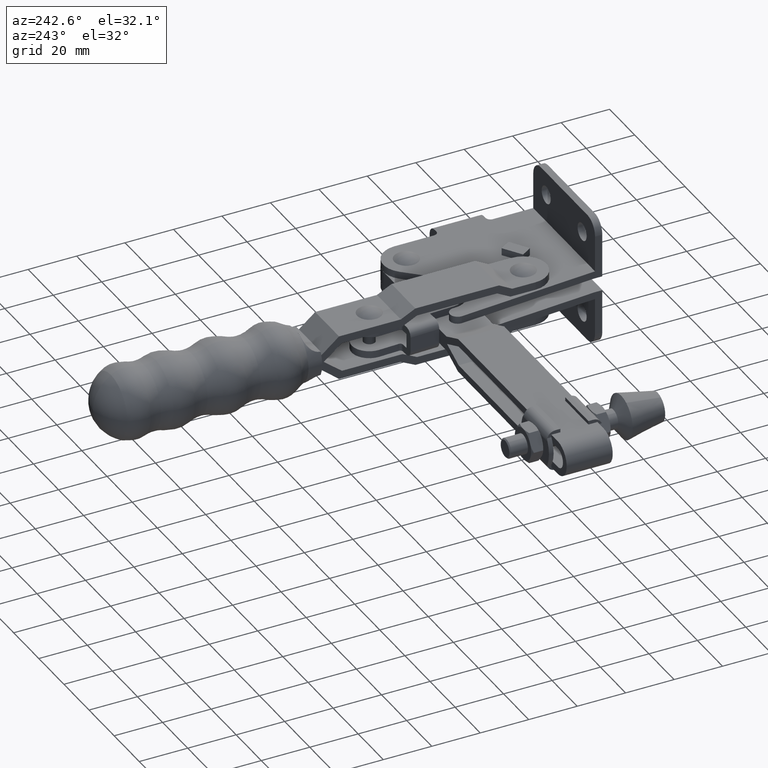
[diagram: clean part render]
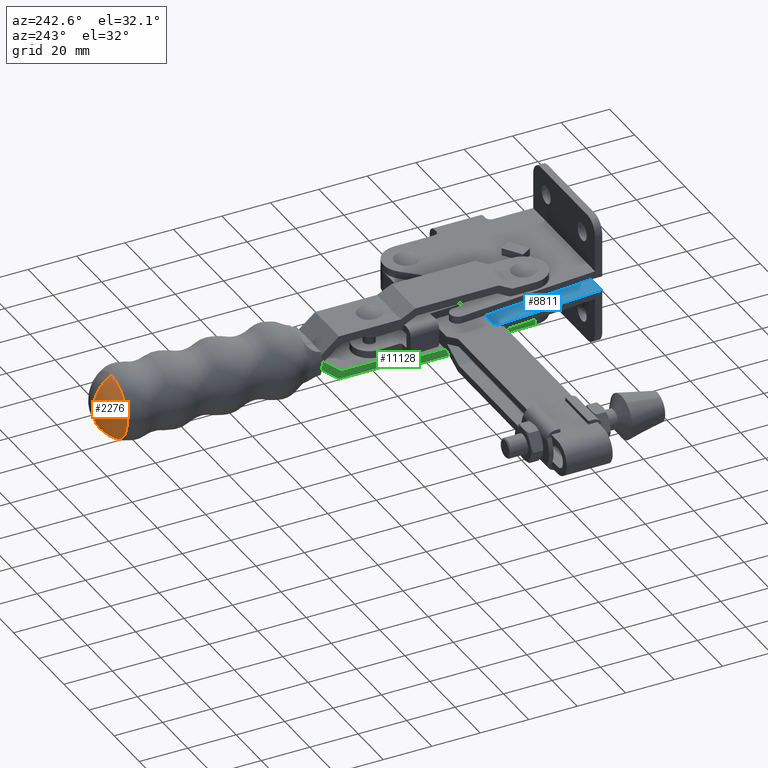
[diagram: same view with three faces highlighted in distinct colors, each labeled with its STEP entity id]
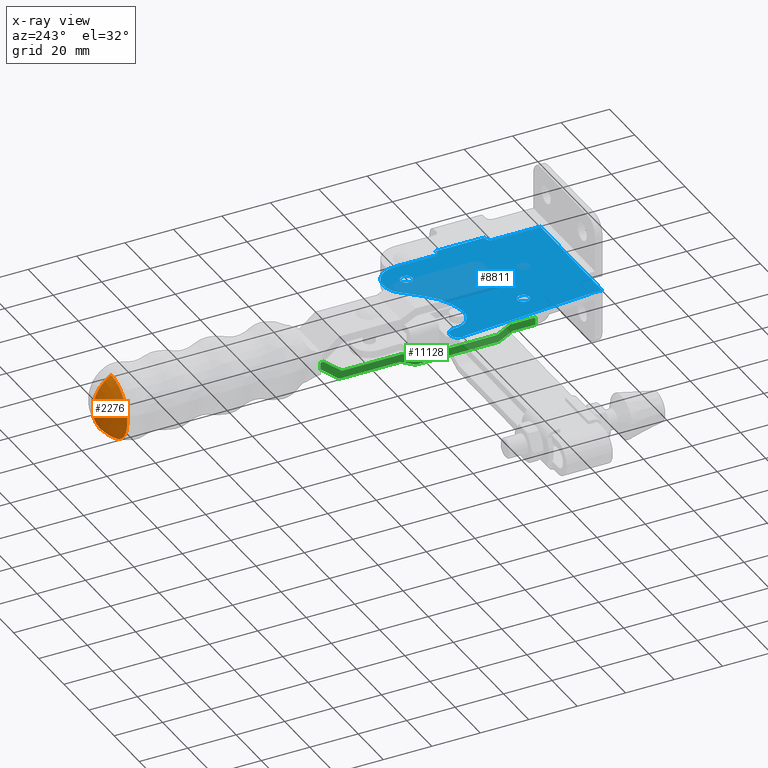
[diagram: x-ray of the same camera — body ghosted, the three highlighted faces saturated]
A machine part, auxiliary view with three faces highlighted in distinct colors.
The next image is the same camera in x-ray (body ghosted, the three faces saturated) — at least one of them is partly hidden behind the body in this view.
Their STEP definitions:

[orange] entity #2276 — the highlighted toroidal blend (fillet) surface has major radius 0.0116 mm and minor (blend) radius 15.0361 mm.
#113 = EDGE_CURVE ( 'NONE', #2653, #11544, #10035, .T. ) ;
#238 = CARTESIAN_POINT ( 'NONE',  ( -40.88923383545749600, 191.3238571931479200, -0.01160999269274295600 ) ) ;
#879 = ORIENTED_EDGE ( 'NONE', *, *, #3340, .F. ) ;
#1187 = DIRECTION ( 'NONE',  ( 5.301320001231254800E-005, 0.9999999985948002700, 0.0000000000000000000 ) ) ;
#1255 = CIRCLE ( 'NONE', #7241, 15.03614265763732800 ) ;
#1437 = FACE_OUTER_BOUND ( 'NONE', #8372, .T. ) ;
#2276 = ADVANCED_FACE ( 'NONE', ( #1437 ), #5219, .T. ) ;
#2653 = VERTEX_POINT ( 'NONE', #3891 ) ;
#3009 = EDGE_CURVE ( 'NONE', #5487, #11544, #1255, .T. ) ;
#3288 = DIRECTION ( 'NONE',  ( -5.301320001245035700E-005, -0.9999999985948002700, -3.551894706177346300E-019 ) ) ;
#3298 = CIRCLE ( 'NONE', #9548, 15.03614265763732800 ) ;
#3340 = EDGE_CURVE ( 'NONE', #5487, #2653, #3298, .T. ) ;
#3891 = CARTESIAN_POINT ( 'NONE',  ( -40.88883527839029600, 198.8419294195952300, 13.01007099940250600 ) ) ;
#4236 = ORIENTED_EDGE ( 'NONE', *, *, #113, .F. ) ;
#4407 = CARTESIAN_POINT ( 'NONE',  ( -40.88923383545749600, 191.3238571931479200, 0.01160999269338183900 ) ) ;
#5219 = TOROIDAL_SURFACE ( 'NONE', #12020, -0.01160999269306239900, 15.03614265763732400 ) ;
#5349 = DIRECTION ( 'NONE',  ( -5.301320001231254800E-005, -0.9999999985948002700, 0.0000000000000000000 ) ) ;
#5487 = VERTEX_POINT ( 'NONE', #11220 ) ;
#5550 = DIRECTION ( 'NONE',  ( -5.301320001245037100E-005, -0.9999999985948004900, -3.551894706177347300E-019 ) ) ;
#6571 = AXIS2_PLACEMENT_3D ( 'NONE', #11246, #5550, #12191 ) ;
#6783 = DIRECTION ( 'NONE',  ( 0.9999999985948003800, -5.301320001245036400E-005, -1.908191406062422600E-016 ) ) ;
#7241 = AXIS2_PLACEMENT_3D ( 'NONE', #4407, #11037, #5349 ) ;
#7927 = ORIENTED_EDGE ( 'NONE', *, *, #3009, .T. ) ;
#8006 = CARTESIAN_POINT ( 'NONE',  ( -40.88923383545749600, 191.3238571931479200, 3.194416534353424200E-013 ) ) ;
#8372 = EDGE_LOOP ( 'NONE', ( #879, #7927, #4236 ) ) ;
#9166 = DIRECTION ( 'NONE',  ( 1.882973044817432600E-023, 3.551894701186225200E-019, -1.000000000000000000 ) ) ;
#9222 = CARTESIAN_POINT ( 'NONE',  ( -40.88883527839029600, 198.8419294195952300, -13.01007099940186700 ) ) ;
#9548 = AXIS2_PLACEMENT_3D ( 'NONE', #238, #6783, #1187 ) ;
#10035 = CIRCLE ( 'NONE', #6571, 13.01007099940219200 ) ;
#11037 = DIRECTION ( 'NONE',  ( -0.9999999985948003800, 5.301320001245036400E-005, 6.835446069150691700E-017 ) ) ;
#11220 = CARTESIAN_POINT ( 'NONE',  ( -40.88843672165699400, 206.3599953473915300, 3.194469941133010700E-013 ) ) ;
#11246 = CARTESIAN_POINT ( 'NONE',  ( -40.88883527839028900, 198.8419294195952300, 3.194443237754403600E-013 ) ) ;
#11544 = VERTEX_POINT ( 'NONE', #9222 ) ;
#12020 = AXIS2_PLACEMENT_3D ( 'NONE', #8006, #3288, #9166 ) ;
#12191 = DIRECTION ( 'NONE',  ( 0.0000000000000000000, 0.0000000000000000000, -1.000000000000000000 ) ) ;

[blue] entity #8811 — the highlighted planar face has unit normal (0, 0, 1).
#6 = ORIENTED_EDGE ( 'NONE', *, *, #2367, .T. ) ;
#91 = VERTEX_POINT ( 'NONE', #8323 ) ;
#92 = DIRECTION ( 'NONE',  ( 1.000000000000000000, 0.0000000000000000000, -1.807003620809174400E-016 ) ) ;
#95 = LINE ( 'NONE', #6975, #9800 ) ;
#223 = AXIS2_PLACEMENT_3D ( 'NONE', #11693, #350, #4113 ) ;
#256 = VERTEX_POINT ( 'NONE', #1129 ) ;
#305 = VERTEX_POINT ( 'NONE', #7770 ) ;
#330 = VECTOR ( 'NONE', #7792, 1000.000000000000000 ) ;
#349 = CARTESIAN_POINT ( 'NONE',  ( -49.19933982822009000, 0.3599999999999999900, -3.000000000000032400 ) ) ;
#350 = DIRECTION ( 'NONE',  ( -2.252670923979116300E-016, 0.0000000000000000000, -1.000000000000000000 ) ) ;
#502 = DIRECTION ( 'NONE',  ( 1.000000000000000000, 0.0000000000000000000, -1.807003620809174400E-016 ) ) ;
#509 = VERTEX_POINT ( 'NONE', #2235 ) ;
#592 = EDGE_CURVE ( 'NONE', #2398, #5914, #7503, .T. ) ;
#699 = DIRECTION ( 'NONE',  ( 1.000000000000000000, 0.0000000000000000000, -1.807003620809174400E-016 ) ) ;
#713 = FACE_OUTER_BOUND ( 'NONE', #6934, .T. ) ;
#817 = EDGE_CURVE ( 'NONE', #9693, #5161, #8233, .T. ) ;
#1010 = VERTEX_POINT ( 'NONE', #9807 ) ;
#1029 = CARTESIAN_POINT ( 'NONE',  ( -51.00783876457293100, 61.01685820576258100, -3.000000000000032000 ) ) ;
#1083 = CIRCLE ( 'NONE', #8744, 3.200000000000049900 ) ;
#1129 = CARTESIAN_POINT ( 'NONE',  ( 0.0006601717799226061900, 3.000000000000000000, -3.000000000000043500 ) ) ;
#1167 = CARTESIAN_POINT ( 'NONE',  ( -6.610988856619023600E-016, 3.000000000000000000, -3.000000000000043500 ) ) ;
#1210 = DIRECTION ( 'NONE',  ( -1.000000000000000000, 0.0000000000000000000, 2.203662952206309300E-016 ) ) ;
#1270 = EDGE_CURVE ( 'NONE', #6355, #91, #2492, .T. ) ;
#1276 = CIRCLE ( 'NONE', #6055, 2.399999999999999500 ) ;
#1458 = EDGE_CURVE ( 'NONE', #6442, #7013, #11491, .T. ) ;
#1488 = CARTESIAN_POINT ( 'NONE',  ( -22.82834167342754500, 60.27915286033955100, -3.000000000000038200 ) ) ;
#1507 = CARTESIAN_POINT ( 'NONE',  ( -6.610988856619023600E-016, 3.000000000000000000, -3.000000000000043500 ) ) ;
#1533 = VECTOR ( 'NONE', #8016, 1000.000000000000000 ) ;
#1671 = CARTESIAN_POINT ( 'NONE',  ( -43.29785875746165400, 28.62999999999998800, -3.000000000000033300 ) ) ;
#1887 = CARTESIAN_POINT ( 'NONE',  ( -47.81334074022173300, 60.66116849802688200, -3.000000000000033800 ) ) ;
#1981 = DIRECTION ( 'NONE',  ( 1.000000000000000000, 0.0000000000000000000, -2.710505431213718700E-016 ) ) ;
#2035 = AXIS2_PLACEMENT_3D ( 'NONE', #1029, #7579, #1981 ) ;
#2039 = VERTEX_POINT ( 'NONE', #1887 ) ;
#2096 = VERTEX_POINT ( 'NONE', #4433 ) ;
#2179 = CIRCLE ( 'NONE', #2035, 3.200000000000049900 ) ;
#2201 = VECTOR ( 'NONE', #8732, 1000.000000000000000 ) ;
#2205 = ORIENTED_EDGE ( 'NONE', *, *, #10216, .F. ) ;
#2213 = ORIENTED_EDGE ( 'NONE', *, *, #7420, .T. ) ;
#2235 = CARTESIAN_POINT ( 'NONE',  ( -47.80936974910127900, 60.91788367839262700, -3.000000000000032900 ) ) ;
#2236 = CARTESIAN_POINT ( 'NONE',  ( 0.0006601717799226061900, 3.000000000000000000, -3.000000000000043500 ) ) ;
#2353 = ORIENTED_EDGE ( 'NONE', *, *, #9524, .T. ) ;
#2367 = EDGE_CURVE ( 'NONE', #11650, #6355, #11002, .T. ) ;
#2398 = VERTEX_POINT ( 'NONE', #6035 ) ;
#2400 = CARTESIAN_POINT ( 'NONE',  ( 1.999999999999999600, 21.99999999999996400, -3.000000000000044400 ) ) ;
#2410 = EDGE_CURVE ( 'NONE', #8741, #7229, #1276, .T. ) ;
#2446 = ORIENTED_EDGE ( 'NONE', *, *, #6780, .F. ) ;
#2455 = DIRECTION ( 'NONE',  ( -2.252670923979116300E-016, 0.0000000000000000000, -1.000000000000000000 ) ) ;
#2471 = ORIENTED_EDGE ( 'NONE', *, *, #7669, .T. ) ;
#2477 = LINE ( 'NONE', #2863, #5236 ) ;
#2492 = LINE ( 'NONE', #5942, #6580 ) ;
#2547 = DIRECTION ( 'NONE',  ( -2.252670923979116300E-016, 0.0000000000000000000, -1.000000000000000000 ) ) ;
#2719 = CIRCLE ( 'NONE', #11956, 2.000000000000001800 ) ;
#2745 = CIRCLE ( 'NONE', #9181, 2.399999999999999500 ) ;
#2805 = CARTESIAN_POINT ( 'NONE',  ( -54.20783876457298300, 61.01685820576258100, -3.000000000000031100 ) ) ;
#2855 = EDGE_CURVE ( 'NONE', #7013, #305, #2719, .T. ) ;
#2863 = CARTESIAN_POINT ( 'NONE',  ( 0.0000000000000000000, 0.0000000000000000000, -3.000000000000044400 ) ) ;
#3013 = VECTOR ( 'NONE', #1210, 1000.000000000000000 ) ;
#3074 = ORIENTED_EDGE ( 'NONE', *, *, #1270, .T. ) ;
#3133 = ORIENTED_EDGE ( 'NONE', *, *, #12207, .T. ) ;
#3200 = FACE_BOUND ( 'NONE', #5223, .T. ) ;
#3226 = AXIS2_PLACEMENT_3D ( 'NONE', #10504, #4832, #11477 ) ;
#3248 = DIRECTION ( 'NONE',  ( 2.252670923979116300E-016, -0.0000000000000000000, 1.000000000000000000 ) ) ;
#3254 = DIRECTION ( 'NONE',  ( -2.252670923979116300E-016, 0.0000000000000000000, -1.000000000000000000 ) ) ;
#3342 = AXIS2_PLACEMENT_3D ( 'NONE', #9300, #3663, #10249 ) ;
#3463 = LINE ( 'NONE', #1507, #11302 ) ;
#3663 = DIRECTION ( 'NONE',  ( 2.252670923979116300E-016, -0.0000000000000000000, 1.000000000000000000 ) ) ;
#3743 = ORIENTED_EDGE ( 'NONE', *, *, #6819, .T. ) ;
#3930 = EDGE_CURVE ( 'NONE', #91, #10739, #7175, .T. ) ;
#3965 = AXIS2_PLACEMENT_3D ( 'NONE', #11143, #5460, #12102 ) ;
#3981 = VECTOR ( 'NONE', #5818, 1000.000000000000100 ) ;
#4113 = DIRECTION ( 'NONE',  ( 1.000000000000000000, 0.0000000000000000000, -2.168404344971006900E-016 ) ) ;
#4116 = EDGE_CURVE ( 'NONE', #9863, #5161, #12086, .T. ) ;
#4309 = CARTESIAN_POINT ( 'NONE',  ( -51.00783876457293100, 61.01685820576258100, -3.000000000000032000 ) ) ;
#4320 = ORIENTED_EDGE ( 'NONE', *, *, #4116, .F. ) ;
#4349 = VERTEX_POINT ( 'NONE', #6555 ) ;
#4432 = CARTESIAN_POINT ( 'NONE',  ( 2.780660171779914000, 42.35999999999990000, -3.000000000000044400 ) ) ;
#4433 = CARTESIAN_POINT ( 'NONE',  ( -16.48307524939460200, 67.12032191307085300, -3.000000000000039100 ) ) ;
#4600 = CARTESIAN_POINT ( 'NONE',  ( -0.01785875746183537800, 60.65999999999998900, -3.000000000000043100 ) ) ;
#4777 = AXIS2_PLACEMENT_3D ( 'NONE', #8895, #3248, #9843 ) ;
#4832 = DIRECTION ( 'NONE',  ( -2.252670923979116300E-016, 0.0000000000000000000, -1.000000000000000000 ) ) ;
#4869 = ORIENTED_EDGE ( 'NONE', *, *, #8860, .T. ) ;
#5091 = CIRCLE ( 'NONE', #3342, 9.499999999999859700 ) ;
#5106 = EDGE_CURVE ( 'NONE', #256, #5644, #8021, .T. ) ;
#5108 = CARTESIAN_POINT ( 'NONE',  ( 1.982141242538149100, 44.35999999999990000, -3.000000000000044400 ) ) ;
#5129 = DIRECTION ( 'NONE',  ( -0.0000000000000000000, -1.000000000000000000, -0.0000000000000000000 ) ) ;
#5156 = CIRCLE ( 'NONE', #12189, 2.399999999999999500 ) ;
#5161 = VERTEX_POINT ( 'NONE', #349 ) ;
#5209 = VERTEX_POINT ( 'NONE', #8854 ) ;
#5223 = EDGE_LOOP ( 'NONE', ( #11091, #8831 ) ) ;
#5236 = VECTOR ( 'NONE', #9446, 1000.000000000000000 ) ;
#5251 = DIRECTION ( 'NONE',  ( 1.000000000000000000, 0.0000000000000000000, -2.710505431213718700E-016 ) ) ;
#5324 = EDGE_CURVE ( 'NONE', #10739, #9693, #3463, .T. ) ;
#5342 = CARTESIAN_POINT ( 'NONE',  ( 0.0006601717799226061900, 0.3599999999999999900, -3.000000000000043500 ) ) ;
#5416 = ORIENTED_EDGE ( 'NONE', *, *, #5106, .T. ) ;
#5460 = DIRECTION ( 'NONE',  ( 2.252670923979116300E-016, -0.0000000000000000000, 1.000000000000000000 ) ) ;
#5474 = CARTESIAN_POINT ( 'NONE',  ( -38.49785875746165700, 28.62999999999998800, -3.000000000000034200 ) ) ;
#5532 = ORIENTED_EDGE ( 'NONE', *, *, #817, .T. ) ;
#5644 = VERTEX_POINT ( 'NONE', #9450 ) ;
#5659 = CARTESIAN_POINT ( 'NONE',  ( -11.91785875746169400, 60.65999999999998900, -2.999999999985902400 ) ) ;
#5697 = DIRECTION ( 'NONE',  ( 2.252670923979116300E-016, -0.0000000000000000000, 1.000000000000000000 ) ) ;
#5769 = CIRCLE ( 'NONE', #5896, 8.300000000000009600 ) ;
#5818 = DIRECTION ( 'NONE',  ( -0.6800338855864164200, -0.7331806833613666600, 1.531892561381061400E-016 ) ) ;
#5896 = AXIS2_PLACEMENT_3D ( 'NONE', #8897, #3254, #9849 ) ;
#5914 = VERTEX_POINT ( 'NONE', #12121 ) ;
#5931 = CIRCLE ( 'NONE', #8508, 2.399999999999999500 ) ;
#5942 = CARTESIAN_POINT ( 'NONE',  ( -49.19334074022156500, 3.561168498026997300, -3.000000000000032000 ) ) ;
#5995 = AXIS2_PLACEMENT_3D ( 'NONE', #8171, #2547, #9124 ) ;
#6028 = ORIENTED_EDGE ( 'NONE', *, *, #5324, .T. ) ;
#6035 = CARTESIAN_POINT ( 'NONE',  ( 0.0000000000000000000, 19.99999999999996100, -3.000000000000044000 ) ) ;
#6055 = AXIS2_PLACEMENT_3D ( 'NONE', #11816, #6119, #502 ) ;
#6062 = LINE ( 'NONE', #2236, #8277 ) ;
#6070 = DIRECTION ( 'NONE',  ( 1.000000000000000000, 0.0000000000000000000, -2.168404344971006900E-016 ) ) ;
#6119 = DIRECTION ( 'NONE',  ( 2.252670923979116300E-016, -0.0000000000000000000, 1.000000000000000000 ) ) ;
#6138 = DIRECTION ( 'NONE',  ( 0.0000000000000000000, -1.000000000000000000, 0.0000000000000000000 ) ) ;
#6218 = CARTESIAN_POINT ( 'NONE',  ( -54.19566179846650300, 60.73795982897007700, -3.000000000000030600 ) ) ;
#6250 = CARTESIAN_POINT ( 'NONE',  ( -7.117858757461695200, 60.65999999999998900, -2.999999999985903300 ) ) ;
#6304 = ORIENTED_EDGE ( 'NONE', *, *, #3930, .T. ) ;
#6321 = DIRECTION ( 'NONE',  ( -2.252670923979116300E-016, 0.0000000000000000000, -1.000000000000000000 ) ) ;
#6330 = EDGE_CURVE ( 'NONE', #9959, #10288, #5931, .T. ) ;
#6355 = VERTEX_POINT ( 'NONE', #6218 ) ;
#6369 = PLANE ( 'NONE',  #3965 ) ;
#6442 = VERTEX_POINT ( 'NONE', #4432 ) ;
#6491 = ORIENTED_EDGE ( 'NONE', *, *, #9309, .T. ) ;
#6530 = ORIENTED_EDGE ( 'NONE', *, *, #11714, .T. ) ;
#6555 = CARTESIAN_POINT ( 'NONE',  ( 2.780660171779914000, 21.99999999999996400, -3.000000000000044400 ) ) ;
#6580 = VECTOR ( 'NONE', #6793, 1000.000000000000000 ) ;
#6714 = VECTOR ( 'NONE', #8727, 1000.000000000000000 ) ;
#6780 = EDGE_CURVE ( 'NONE', #256, #9863, #6062, .T. ) ;
#6793 = DIRECTION ( 'NONE',  ( 0.08715574274765967900, -0.9961946980917454300, -1.963332075454567000E-017 ) ) ;
#6819 = EDGE_CURVE ( 'NONE', #1010, #2039, #5769, .T. ) ;
#6873 = EDGE_CURVE ( 'NONE', #5914, #4349, #9611, .T. ) ;
#6880 = CARTESIAN_POINT ( 'NONE',  ( -0.01785875746185272600, 60.65999999999998900, -3.000000000000044400 ) ) ;
#6890 = DIRECTION ( 'NONE',  ( 0.0000000000000000000, -1.000000000000000000, 0.0000000000000000000 ) ) ;
#6898 = ORIENTED_EDGE ( 'NONE', *, *, #1458, .T. ) ;
#6905 = CARTESIAN_POINT ( 'NONE',  ( -49.19933982822009000, 3.000000000000000000, -3.000000000000032400 ) ) ;
#6934 = EDGE_LOOP ( 'NONE', ( #5532, #4320, #2446, #5416, #6994, #8363, #8681, #2205, #6898, #9444, #2213, #4869, #3133, #2471, #3743, #6530, #2353, #8640, #6, #3074, #6304, #6028 ) ) ;
#6975 = CARTESIAN_POINT ( 'NONE',  ( 2.780660171779914000, 70.15999999999985400, -3.000000000000044400 ) ) ;
#6994 = ORIENTED_EDGE ( 'NONE', *, *, #9486, .T. ) ;
#7013 = VERTEX_POINT ( 'NONE', #7226 ) ;
#7018 = VECTOR ( 'NONE', #11897, 1000.000000000000000 ) ;
#7099 = CARTESIAN_POINT ( 'NONE',  ( 0.0006601717799226061900, 0.3599999999999999900, -3.000000000000043500 ) ) ;
#7175 = LINE ( 'NONE', #11606, #2201 ) ;
#7226 = CARTESIAN_POINT ( 'NONE',  ( 1.982141242538148600, 42.35999999999990000, -3.000000000000044400 ) ) ;
#7229 = VERTEX_POINT ( 'NONE', #5659 ) ;
#7243 = EDGE_CURVE ( 'NONE', #7229, #8741, #5156, .T. ) ;
#7246 = ORIENTED_EDGE ( 'NONE', *, *, #6330, .T. ) ;
#7345 = VECTOR ( 'NONE', #6138, 1000.000000000000000 ) ;
#7420 = EDGE_CURVE ( 'NONE', #305, #9986, #7804, .T. ) ;
#7503 = CIRCLE ( 'NONE', #223, 2.000000000000001800 ) ;
#7579 = DIRECTION ( 'NONE',  ( 2.252670923979116300E-016, -0.0000000000000000000, 1.000000000000000000 ) ) ;
#7669 = EDGE_CURVE ( 'NONE', #9771, #1010, #10170, .T. ) ;
#7770 = CARTESIAN_POINT ( 'NONE',  ( -0.01785875746185272600, 44.35999999999990000, -3.000000000000044400 ) ) ;
#7792 = DIRECTION ( 'NONE',  ( 0.0000000000000000000, 1.000000000000000000, 0.0000000000000000000 ) ) ;
#7804 = LINE ( 'NONE', #6880, #330 ) ;
#7906 = FACE_BOUND ( 'NONE', #9557, .T. ) ;
#8016 = DIRECTION ( 'NONE',  ( 1.000000000000000000, 0.0000000000000000000, -2.252670923979116300E-016 ) ) ;
#8021 = LINE ( 'NONE', #1167, #3013 ) ;
#8056 = DIRECTION ( 'NONE',  ( -1.000000000000000000, 0.0000000000000000000, 2.203662952206309300E-016 ) ) ;
#8073 = CARTESIAN_POINT ( 'NONE',  ( -40.89785875746165500, 28.62999999999998800, -3.000000000000033800 ) ) ;
#8171 = CARTESIAN_POINT ( 'NONE',  ( -41.15785875746169600, 77.27999999999995900, -3.000000000000033800 ) ) ;
#8233 = LINE ( 'NONE', #9819, #7345 ) ;
#8277 = VECTOR ( 'NONE', #6890, 1000.000000000000000 ) ;
#8323 = CARTESIAN_POINT ( 'NONE',  ( -49.19334074022156500, 3.561168498026997300, -3.000000000000032000 ) ) ;
#8353 = CARTESIAN_POINT ( 'NONE',  ( 1.982141242538146800, 42.35999999999990000, -3.000000000000044400 ) ) ;
#8363 = ORIENTED_EDGE ( 'NONE', *, *, #592, .T. ) ;
#8508 = AXIS2_PLACEMENT_3D ( 'NONE', #8073, #2455, #9037 ) ;
#8640 = ORIENTED_EDGE ( 'NONE', *, *, #11412, .T. ) ;
#8681 = ORIENTED_EDGE ( 'NONE', *, *, #6873, .T. ) ;
#8727 = DIRECTION ( 'NONE',  ( -1.000000000000000000, 0.0000000000000000000, 2.252670923979116300E-016 ) ) ;
#8732 = DIRECTION ( 'NONE',  ( 1.169092769592610000E-014, -1.000000000000000000, -2.633581289495488800E-030 ) ) ;
#8741 = VERTEX_POINT ( 'NONE', #6250 ) ;
#8744 = AXIS2_PLACEMENT_3D ( 'NONE', #4309, #10938, #5251 ) ;
#8811 = ADVANCED_FACE ( 'NONE', ( #713, #3200, #7906 ), #6369, .T. ) ;
#8831 = ORIENTED_EDGE ( 'NONE', *, *, #2410, .F. ) ;
#8854 = CARTESIAN_POINT ( 'NONE',  ( -47.80783876457288500, 61.01685820576258100, -3.000000000000032900 ) ) ;
#8860 = EDGE_CURVE ( 'NONE', #9986, #2096, #5091, .T. ) ;
#8895 = CARTESIAN_POINT ( 'NONE',  ( -51.00783876457293100, 61.01685820576258100, -3.000000000000032000 ) ) ;
#8897 = CARTESIAN_POINT ( 'NONE',  ( -39.51334074022172200, 60.66116849802688200, -3.000000000000035500 ) ) ;
#9003 = LINE ( 'NONE', #11515, #3981 ) ;
#9037 = DIRECTION ( 'NONE',  ( 1.000000000000000000, 0.0000000000000000000, -1.807003620809174400E-016 ) ) ;
#9124 = DIRECTION ( 'NONE',  ( 1.000000000000000000, 0.0000000000000000000, -2.255140518769850700E-016 ) ) ;
#9181 = AXIS2_PLACEMENT_3D ( 'NONE', #12003, #6321, #699 ) ;
#9300 = CARTESIAN_POINT ( 'NONE',  ( -9.517858757461695500, 60.65999999999998900, -3.000000000000040900 ) ) ;
#9309 = EDGE_CURVE ( 'NONE', #10288, #9959, #2745, .T. ) ;
#9444 = ORIENTED_EDGE ( 'NONE', *, *, #2855, .T. ) ;
#9446 = DIRECTION ( 'NONE',  ( 0.0000000000000000000, 1.000000000000000000, 0.0000000000000000000 ) ) ;
#9450 = CARTESIAN_POINT ( 'NONE',  ( 9.629649721936179300E-032, 3.000000000000000000, -3.000000000000043500 ) ) ;
#9486 = EDGE_CURVE ( 'NONE', #5644, #2398, #2477, .T. ) ;
#9524 = EDGE_CURVE ( 'NONE', #509, #5209, #2179, .T. ) ;
#9557 = EDGE_LOOP ( 'NONE', ( #6491, #7246 ) ) ;
#9611 = LINE ( 'NONE', #2400, #1533 ) ;
#9693 = VERTEX_POINT ( 'NONE', #6905 ) ;
#9771 = VERTEX_POINT ( 'NONE', #1488 ) ;
#9800 = VECTOR ( 'NONE', #5129, 1000.000000000000000 ) ;
#9807 = CARTESIAN_POINT ( 'NONE',  ( -38.69600543824014200, 52.40150972758516400, -3.000000000000035500 ) ) ;
#9819 = CARTESIAN_POINT ( 'NONE',  ( -49.19933982822009000, 3.000000000000000000, -3.000000000000032400 ) ) ;
#9843 = DIRECTION ( 'NONE',  ( 1.000000000000000000, 0.0000000000000000000, -2.710505431213718700E-016 ) ) ;
#9849 = DIRECTION ( 'NONE',  ( 1.000000000000000000, 0.0000000000000000000, -2.090028284309403800E-016 ) ) ;
#9863 = VERTEX_POINT ( 'NONE', #5342 ) ;
#9948 = CARTESIAN_POINT ( 'NONE',  ( -49.19334074022154400, 3.000000000000000000, -3.000000000000032400 ) ) ;
#9959 = VERTEX_POINT ( 'NONE', #5474 ) ;
#9986 = VERTEX_POINT ( 'NONE', #4600 ) ;
#10170 = CIRCLE ( 'NONE', #5995, 24.99999999999998600 ) ;
#10216 = EDGE_CURVE ( 'NONE', #6442, #4349, #95, .T. ) ;
#10249 = DIRECTION ( 'NONE',  ( 1.000000000000000000, 0.0000000000000000000, -2.282530889443201000E-016 ) ) ;
#10288 = VERTEX_POINT ( 'NONE', #1671 ) ;
#10504 = CARTESIAN_POINT ( 'NONE',  ( -39.51334074022172200, 60.66116849802688200, -3.000000000000035500 ) ) ;
#10739 = VERTEX_POINT ( 'NONE', #9948 ) ;
#10938 = DIRECTION ( 'NONE',  ( 2.252670923979116300E-016, -0.0000000000000000000, 1.000000000000000000 ) ) ;
#11002 = CIRCLE ( 'NONE', #4777, 3.200000000000049900 ) ;
#11091 = ORIENTED_EDGE ( 'NONE', *, *, #7243, .F. ) ;
#11143 = CARTESIAN_POINT ( 'NONE',  ( 2.780660171779914000, 70.15999999999985400, -3.000000000000044400 ) ) ;
#11302 = VECTOR ( 'NONE', #8056, 1000.000000000000000 ) ;
#11391 = CARTESIAN_POINT ( 'NONE',  ( -9.517858757461695500, 60.65999999999998900, -2.999999999985902800 ) ) ;
#11412 = EDGE_CURVE ( 'NONE', #5209, #11650, #1083, .T. ) ;
#11477 = DIRECTION ( 'NONE',  ( 1.000000000000000000, 0.0000000000000000000, -2.090028284309403800E-016 ) ) ;
#11491 = LINE ( 'NONE', #8353, #6714 ) ;
#11515 = CARTESIAN_POINT ( 'NONE',  ( -16.48307524939460200, 67.12032191307085300, -3.000000000000039100 ) ) ;
#11606 = CARTESIAN_POINT ( 'NONE',  ( -49.19334074022156500, 3.561168498026997300, -3.000000000000032000 ) ) ;
#11650 = VERTEX_POINT ( 'NONE', #2805 ) ;
#11693 = CARTESIAN_POINT ( 'NONE',  ( 2.000000000000001800, 19.99999999999996100, -3.000000000000044400 ) ) ;
#11708 = CIRCLE ( 'NONE', #3226, 8.300000000000009600 ) ;
#11714 = EDGE_CURVE ( 'NONE', #2039, #509, #11708, .T. ) ;
#11761 = DIRECTION ( 'NONE',  ( -2.252670923979116300E-016, 0.0000000000000000000, -1.000000000000000000 ) ) ;
#11816 = CARTESIAN_POINT ( 'NONE',  ( -9.517858757461695500, 60.65999999999998900, -2.999999999985902800 ) ) ;
#11897 = DIRECTION ( 'NONE',  ( -1.000000000000000000, -0.0000000000000000000, 2.203662952206309300E-016 ) ) ;
#11956 = AXIS2_PLACEMENT_3D ( 'NONE', #5108, #11761, #6070 ) ;
#12003 = CARTESIAN_POINT ( 'NONE',  ( -40.89785875746165500, 28.62999999999998800, -3.000000000000033800 ) ) ;
#12086 = LINE ( 'NONE', #7099, #7018 ) ;
#12102 = DIRECTION ( 'NONE',  ( 1.000000000000000000, 0.0000000000000000000, -2.252670923979116300E-016 ) ) ;
#12121 = CARTESIAN_POINT ( 'NONE',  ( 2.000000000000001800, 21.99999999999996400, -3.000000000000044400 ) ) ;
#12189 = AXIS2_PLACEMENT_3D ( 'NONE', #11391, #5697, #92 ) ;
#12207 = EDGE_CURVE ( 'NONE', #2096, #9771, #9003, .T. ) ;

[green] entity #11128 — the highlighted planar face has unit normal (1, -0.0001, -0).
#101 = VECTOR ( 'NONE', #4737, 1000.000000000000100 ) ;
#547 = AXIS2_PLACEMENT_3D ( 'NONE', #3008, #9609, #3964 ) ;
#584 = EDGE_CURVE ( 'NONE', #3650, #3231, #8554, .T. ) ;
#587 = VERTEX_POINT ( 'NONE', #6557 ) ;
#902 = DIRECTION ( 'NONE',  ( -1.851216340484665600E-026, -1.117566340262012300E-026, -1.000000000000000000 ) ) ;
#1094 = PLANE ( 'NONE',  #547 ) ;
#1235 = EDGE_CURVE ( 'NONE', #4002, #9921, #1916, .T. ) ;
#1271 = VECTOR ( 'NONE', #5110, 999.9999999999998900 ) ;
#1415 = VERTEX_POINT ( 'NONE', #9187 ) ;
#1431 = LINE ( 'NONE', #10531, #3903 ) ;
#1634 = VERTEX_POINT ( 'NONE', #4177 ) ;
#1783 = LINE ( 'NONE', #3089, #4969 ) ;
#1863 = LINE ( 'NONE', #6508, #4318 ) ;
#1881 = CARTESIAN_POINT ( 'NONE',  ( -50.39836236951244100, 19.13050363874932500, -9.199999999999558800 ) ) ;
#1903 = VECTOR ( 'NONE', #11305, 1000.000000000000000 ) ;
#1916 = LINE ( 'NONE', #7398, #9396 ) ;
#1999 = ORIENTED_EDGE ( 'NONE', *, *, #5967, .F. ) ;
#2078 = EDGE_CURVE ( 'NONE', #2970, #3650, #8046, .T. ) ;
#2133 = ORIENTED_EDGE ( 'NONE', *, *, #11665, .T. ) ;
#2251 = LINE ( 'NONE', #9462, #9449 ) ;
#2337 = CARTESIAN_POINT ( 'NONE',  ( -50.39836236951244100, 19.13050363874932500, -6.000000000000010700 ) ) ;
#2438 = ORIENTED_EDGE ( 'NONE', *, *, #7492, .T. ) ;
#2466 = CARTESIAN_POINT ( 'NONE',  ( -50.39706354611215000, 43.63050360432191600, -12.19999999999922800 ) ) ;
#2797 = CARTESIAN_POINT ( 'NONE',  ( -50.39315488287524400, 117.3605035007175700, 3.186634831847529000E-013 ) ) ;
#2861 = ORIENTED_EDGE ( 'NONE', *, *, #2078, .T. ) ;
#2877 = DIRECTION ( 'NONE',  ( -4.085951669163839100E-005, -0.7707423174760966700, -0.6371469833422078700 ) ) ;
#2970 = VERTEX_POINT ( 'NONE', #3405 ) ;
#3008 = CARTESIAN_POINT ( 'NONE',  ( -50.39493172040306500, 83.84361478401622500, -30.51716137807223100 ) ) ;
#3089 = CARTESIAN_POINT ( 'NONE',  ( -50.39495405566837900, 83.42229961590719300, -6.000000000000010700 ) ) ;
#3123 = DIRECTION ( 'NONE',  ( 4.654005359673005300E-005, 0.8778955716807603800, -0.4788521306805832400 ) ) ;
#3231 = VERTEX_POINT ( 'NONE', #3760 ) ;
#3405 = CARTESIAN_POINT ( 'NONE',  ( -50.39731456456615900, 38.89548565404613400, -6.000000000000010700 ) ) ;
#3441 = ORIENTED_EDGE ( 'NONE', *, *, #4342, .F. ) ;
#3485 = LINE ( 'NONE', #2466, #10717 ) ;
#3554 = CARTESIAN_POINT ( 'NONE',  ( -50.39735511871221300, 38.13050361205044700, -9.199999999999558800 ) ) ;
#3650 = VERTEX_POINT ( 'NONE', #5423 ) ;
#3712 = VERTEX_POINT ( 'NONE', #4555 ) ;
#3733 = ORIENTED_EDGE ( 'NONE', *, *, #5599, .T. ) ;
#3760 = CARTESIAN_POINT ( 'NONE',  ( -50.39527213486844900, 77.42229962433816600, -9.000000000000124300 ) ) ;
#3903 = VECTOR ( 'NONE', #8593, 1000.000000000000100 ) ;
#3964 = DIRECTION ( 'NONE',  ( 5.301320001219449200E-005, 0.9999999985948002700, -1.117664477593732100E-026 ) ) ;
#4002 = VERTEX_POINT ( 'NONE', #8855 ) ;
#4034 = ORIENTED_EDGE ( 'NONE', *, *, #8526, .T. ) ;
#4177 = CARTESIAN_POINT ( 'NONE',  ( -50.39315488287524400, 117.3605035007175700, -1.019149993301284100E-014 ) ) ;
#4318 = VECTOR ( 'NONE', #902, 1000.000000000000000 ) ;
#4342 = EDGE_CURVE ( 'NONE', #10209, #1634, #4360, .T. ) ;
#4360 = LINE ( 'NONE', #2797, #1903 ) ;
#4383 = CARTESIAN_POINT ( 'NONE',  ( -50.39495405566837900, 83.42229961590719300, -6.000000000000010700 ) ) ;
#4503 = LINE ( 'NONE', #1881, #9235 ) ;
#4555 = CARTESIAN_POINT ( 'NONE',  ( -50.39362736246593500, 108.4480139713795700, -6.000000000000010700 ) ) ;
#4598 = ORIENTED_EDGE ( 'NONE', *, *, #10925, .T. ) ;
#4723 = EDGE_CURVE ( 'NONE', #8121, #4002, #3485, .T. ) ;
#4737 = DIRECTION ( 'NONE',  ( -5.301320001219449900E-005, -0.9999999985948003800, 1.117664477593732300E-026 ) ) ;
#4948 = CARTESIAN_POINT ( 'NONE',  ( -50.39491651151165300, 84.13050354741129400, -9.199999999999562300 ) ) ;
#4969 = VECTOR ( 'NONE', #9688, 1000.000000000000100 ) ;
#5036 = LINE ( 'NONE', #11163, #7255 ) ;
#5040 = CARTESIAN_POINT ( 'NONE',  ( -50.39731456456615900, 38.89548565404613400, -6.000000000000010700 ) ) ;
#5064 = LINE ( 'NONE', #7506, #101 ) ;
#5110 = DIRECTION ( 'NONE',  ( -4.741644757282489300E-005, -0.8944271897430872100, -0.4472135954999177900 ) ) ;
#5123 = CARTESIAN_POINT ( 'NONE',  ( -50.39702299196608900, 44.39548564631759600, -9.000000000000124300 ) ) ;
#5140 = DIRECTION ( 'NONE',  ( 5.301320001219449200E-005, 0.9999999985948002700, -1.117664477593732100E-026 ) ) ;
#5188 = ORIENTED_EDGE ( 'NONE', *, *, #5751, .T. ) ;
#5365 = VERTEX_POINT ( 'NONE', #4383 ) ;
#5423 = CARTESIAN_POINT ( 'NONE',  ( -50.39702299196608900, 44.39548564631759600, -9.000000000000124300 ) ) ;
#5518 = VERTEX_POINT ( 'NONE', #7427 ) ;
#5599 = EDGE_CURVE ( 'NONE', #10209, #8068, #5064, .T. ) ;
#5656 = EDGE_CURVE ( 'NONE', #1415, #1634, #1431, .T. ) ;
#5751 = EDGE_CURVE ( 'NONE', #7382, #8121, #11306, .T. ) ;
#5934 = LINE ( 'NONE', #9079, #10667 ) ;
#5967 = EDGE_CURVE ( 'NONE', #587, #5518, #1863, .T. ) ;
#6031 = VECTOR ( 'NONE', #8516, 1000.000000000000100 ) ;
#6087 = ORIENTED_EDGE ( 'NONE', *, *, #1235, .T. ) ;
#6126 = LINE ( 'NONE', #2337, #6413 ) ;
#6223 = FACE_OUTER_BOUND ( 'NONE', #10750, .T. ) ;
#6413 = VECTOR ( 'NONE', #5140, 1000.000000000000100 ) ;
#6508 = CARTESIAN_POINT ( 'NONE',  ( -50.39785874411234800, 28.63050362540001000, -1.019150042136374200E-014 ) ) ;
#6539 = CARTESIAN_POINT ( 'NONE',  ( -50.39356467491133900, 109.6305035115787800, -9.199999999999562300 ) ) ;
#6557 = CARTESIAN_POINT ( 'NONE',  ( -50.39785874411234800, 28.63050362540001000, -6.000000000000010700 ) ) ;
#7255 = VECTOR ( 'NONE', #12116, 1000.000000000000100 ) ;
#7307 = DIRECTION ( 'NONE',  ( -4.654005359673163100E-005, -0.8778955716807902400, 0.4788521306805285600 ) ) ;
#7382 = VERTEX_POINT ( 'NONE', #4948 ) ;
#7398 = CARTESIAN_POINT ( 'NONE',  ( -50.39735511871221300, 38.13050361205044700, -9.199999999999558800 ) ) ;
#7427 = CARTESIAN_POINT ( 'NONE',  ( -50.39785874411234800, 28.63050362540001000, -9.199999999999558800 ) ) ;
#7492 = EDGE_CURVE ( 'NONE', #3712, #1415, #10042, .T. ) ;
#7506 = CARTESIAN_POINT ( 'NONE',  ( -50.39316707591125100, 117.1305035010398400, -2.999999999999679800 ) ) ;
#7996 = CARTESIAN_POINT ( 'NONE',  ( -50.39523459071172300, 78.13050355584248100, -12.19999999999922800 ) ) ;
#8005 = CARTESIAN_POINT ( 'NONE',  ( -50.39523459071172300, 78.13050355584248100, -12.19999999999922800 ) ) ;
#8012 = ORIENTED_EDGE ( 'NONE', *, *, #5656, .T. ) ;
#8046 = LINE ( 'NONE', #5040, #10566 ) ;
#8068 = VERTEX_POINT ( 'NONE', #11709 ) ;
#8082 = DIRECTION ( 'NONE',  ( -5.301320001219449200E-005, -0.9999999985948002700, 1.117664477593732100E-026 ) ) ;
#8121 = VERTEX_POINT ( 'NONE', #7996 ) ;
#8435 = DIRECTION ( 'NONE',  ( -5.301320001219449200E-005, -0.9999999985948002700, 1.117664477593732100E-026 ) ) ;
#8516 = DIRECTION ( 'NONE',  ( 5.301320001219449200E-005, 0.9999999985948002700, -1.117664477593732100E-026 ) ) ;
#8526 = EDGE_CURVE ( 'NONE', #5365, #3712, #1783, .T. ) ;
#8554 = LINE ( 'NONE', #5123, #6031 ) ;
#8593 = DIRECTION ( 'NONE',  ( 5.301320001215025700E-005, 0.9999999985948002700, 1.586171645915118900E-020 ) ) ;
#8757 = ORIENTED_EDGE ( 'NONE', *, *, #10810, .T. ) ;
#8855 = CARTESIAN_POINT ( 'NONE',  ( -50.39706354611215000, 43.63050360432191600, -12.19999999999922800 ) ) ;
#8883 = CARTESIAN_POINT ( 'NONE',  ( -50.39362736246593500, 108.4480139713795700, -6.000000000000010700 ) ) ;
#8938 = EDGE_CURVE ( 'NONE', #9921, #5518, #4503, .T. ) ;
#9079 = CARTESIAN_POINT ( 'NONE',  ( -50.39527213486844900, 77.42229962433816600, -9.000000000000124300 ) ) ;
#9187 = CARTESIAN_POINT ( 'NONE',  ( -50.39322976346584700, 115.9480139608406300, -1.019150042136374200E-014 ) ) ;
#9235 = VECTOR ( 'NONE', #8435, 1000.000000000000100 ) ;
#9396 = VECTOR ( 'NONE', #7307, 1000.000000000000000 ) ;
#9437 = VECTOR ( 'NONE', #9829, 1000.000000000000100 ) ;
#9449 = VECTOR ( 'NONE', #2877, 1000.000000000000100 ) ;
#9462 = CARTESIAN_POINT ( 'NONE',  ( -50.39356467491133900, 109.6305035115787800, -9.199999999999562300 ) ) ;
#9609 = DIRECTION ( 'NONE',  ( 0.9999999985948003800, -5.301320001219449900E-005, -1.851157092115413000E-026 ) ) ;
#9688 = DIRECTION ( 'NONE',  ( 5.301320001219449200E-005, 0.9999999985948002700, -1.117664477593732100E-026 ) ) ;
#9724 = EDGE_CURVE ( 'NONE', #587, #2970, #6126, .T. ) ;
#9829 = DIRECTION ( 'NONE',  ( 4.139635437828768900E-005, 0.7808688083457562300, 0.6246950475544210700 ) ) ;
#9856 = CARTESIAN_POINT ( 'NONE',  ( -50.39315488287525100, 117.3605035007175700, -2.999999999999679800 ) ) ;
#9921 = VERTEX_POINT ( 'NONE', #3554 ) ;
#10036 = DIRECTION ( 'NONE',  ( 4.741644757282382900E-005, 0.8944271897430671200, 0.4472135954999579300 ) ) ;
#10042 = LINE ( 'NONE', #8883, #9437 ) ;
#10209 = VERTEX_POINT ( 'NONE', #9856 ) ;
#10221 = ORIENTED_EDGE ( 'NONE', *, *, #4723, .T. ) ;
#10374 = ORIENTED_EDGE ( 'NONE', *, *, #584, .T. ) ;
#10531 = CARTESIAN_POINT ( 'NONE',  ( -50.39322976346586100, 115.9480139608406300, -4.336808689942017700E-016 ) ) ;
#10566 = VECTOR ( 'NONE', #3123, 999.9999999999998900 ) ;
#10667 = VECTOR ( 'NONE', #10036, 1000.000000000000100 ) ;
#10717 = VECTOR ( 'NONE', #8082, 1000.000000000000100 ) ;
#10750 = EDGE_LOOP ( 'NONE', ( #3441, #3733, #2133, #4598, #5188, #10221, #6087, #11133, #1999, #12029, #2861, #10374, #8757, #4034, #2438, #8012 ) ) ;
#10810 = EDGE_CURVE ( 'NONE', #3231, #5365, #5934, .T. ) ;
#10925 = EDGE_CURVE ( 'NONE', #10997, #7382, #5036, .T. ) ;
#10997 = VERTEX_POINT ( 'NONE', #6539 ) ;
#11128 = ADVANCED_FACE ( 'NONE', ( #6223 ), #1094, .F. ) ;
#11133 = ORIENTED_EDGE ( 'NONE', *, *, #8938, .T. ) ;
#11163 = CARTESIAN_POINT ( 'NONE',  ( -50.39491651151165300, 84.13050354741129400, -9.199999999999562300 ) ) ;
#11305 = DIRECTION ( 'NONE',  ( -1.881121887718830500E-023, -3.551894701196038800E-019, 1.000000000000000000 ) ) ;
#11306 = LINE ( 'NONE', #8005, #1271 ) ;
#11665 = EDGE_CURVE ( 'NONE', #8068, #10997, #2251, .T. ) ;
#11709 = CARTESIAN_POINT ( 'NONE',  ( -50.39316707591125100, 117.1305035010398400, -2.999999999999679800 ) ) ;
#12029 = ORIENTED_EDGE ( 'NONE', *, *, #9724, .T. ) ;
#12116 = DIRECTION ( 'NONE',  ( -5.301320001219449200E-005, -0.9999999985948002700, 1.117664477593732100E-026 ) ) ;